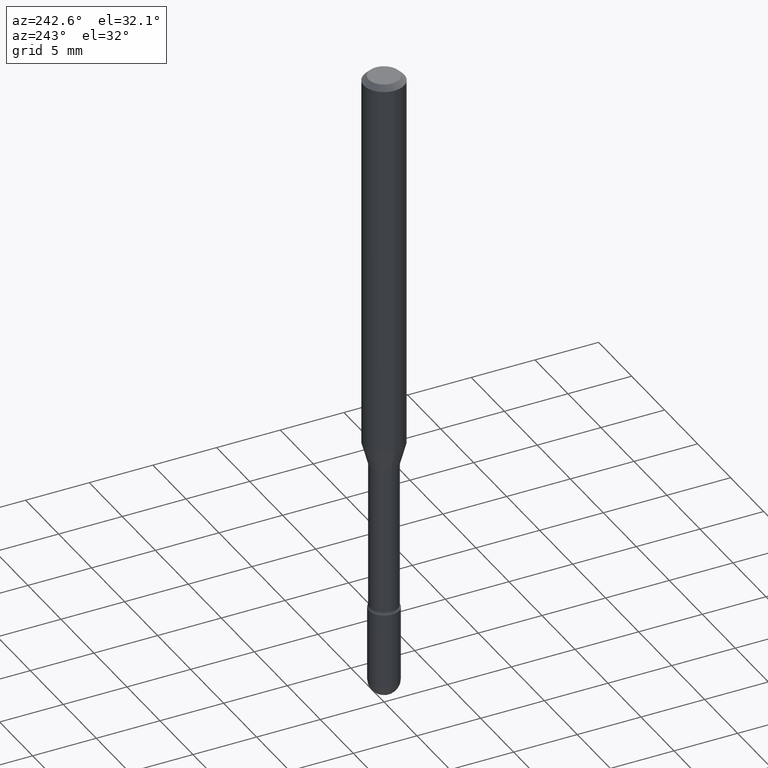
[diagram: clean part render]
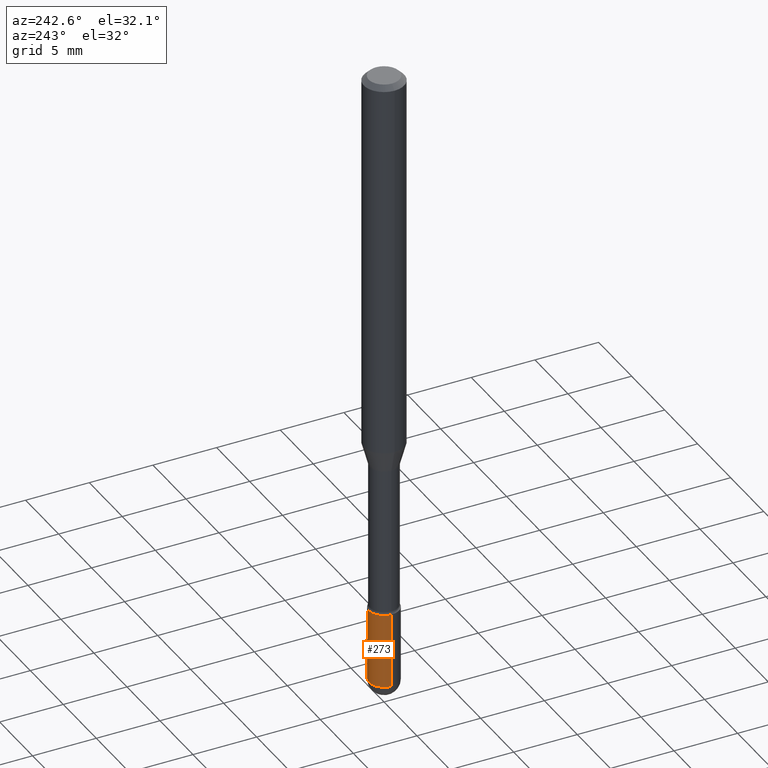
[diagram: same view with one face highlighted and labeled with its STEP entity id]
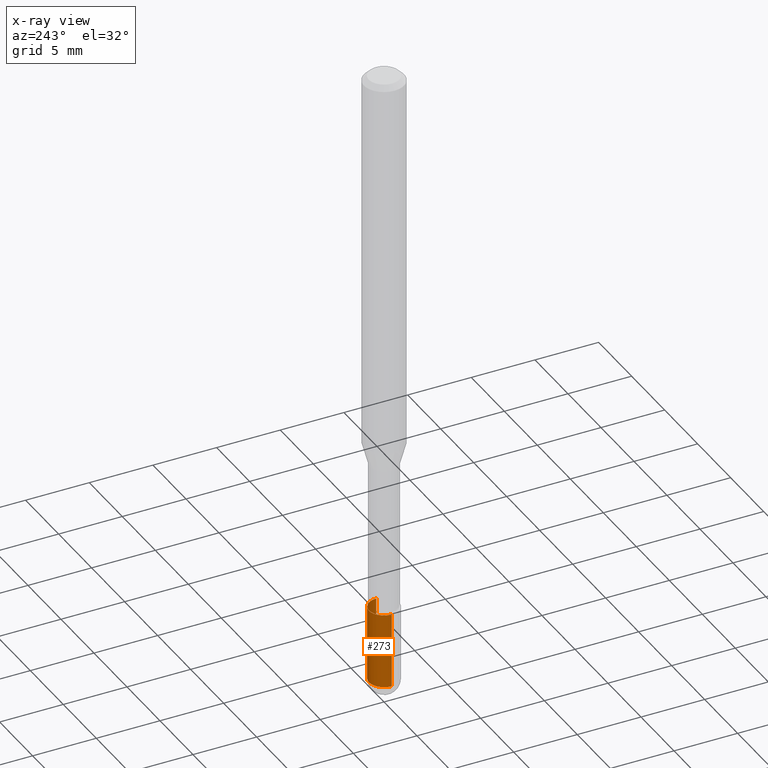
[diagram: x-ray of the same camera — body ghosted, the highlighted face saturated]
A machine part, auxiliary view. The second image highlights one B-rep face of the part: STEP entity #273.
The next image is the same camera in x-ray: the body ghosted, the highlighted face saturated — about 0% of this face is hidden behind the body in this view.
In plain terms, the highlighted cylindrical surface (edge-blend (fillet) strip) has radius 1.1811 mm, axis along (-0, 0, 1).
Its self-contained STEP definition (entity closure, byte-faithful):
#7 = CIRCLE ( 'NONE', #205, 0.04649999999999999967 ) ;
#17 = VECTOR ( 'NONE', #213, 39.37007874015748143 ) ;
#18 = CARTESIAN_POINT ( 'NONE',  ( 4.208651815444620572E-29, -6.008839384149054309E-15, -1.721000000000000085 ) ) ;
#28 = CARTESIAN_POINT ( 'NONE',  ( 4.777223312882664517E-29, -6.820608795430085022E-15, -1.953500000000000014 ) ) ;
#30 = CARTESIAN_POINT ( 'NONE',  ( -0.04649999999999999967, -6.084321717661122786E-15, -1.721000000000000085 ) ) ;
#41 = LINE ( 'NONE', #115, #17 ) ;
#52 = AXIS2_PLACEMENT_3D ( 'NONE', #187, #518, #483 ) ;
#61 = DIRECTION ( 'NONE',  ( -2.445468806185136597E-29, 3.491481338843145583E-15, 1.000000000000000000 ) ) ;
#88 = ORIENTED_EDGE ( 'NONE', *, *, #377, .T. ) ;
#115 = CARTESIAN_POINT ( 'NONE',  ( 0.04649999999999999967, -3.247077645124114474E-16, 2.267422200745110326E-30 ) ) ;
#143 = DIRECTION ( 'NONE',  ( 1.000000000000000000, -6.982962677686260400E-15, 0.000000000000000000 ) ) ;
#156 = EDGE_CURVE ( 'NONE', #261, #419, #340, .T. ) ;
#161 = ORIENTED_EDGE ( 'NONE', *, *, #156, .T. ) ;
#184 = CIRCLE ( 'NONE', #401, 0.04649999999999999967 ) ;
#185 = DIRECTION ( 'NONE',  ( -2.445468806185136597E-29, 3.491481338843145583E-15, 1.000000000000000000 ) ) ;
#187 = CARTESIAN_POINT ( 'NONE',  ( 0.000000000000000000, 0.000000000000000000, 0.000000000000000000 ) ) ;
#194 = CARTESIAN_POINT ( 'NONE',  ( 3.247077645124589763E-16, 0.04649999999999315792, -1.953500000000000458 ) ) ;
#197 = DIRECTION ( 'NONE',  ( -2.445468806185136597E-29, 3.491481338843145583E-15, 1.000000000000000000 ) ) ;
#205 = AXIS2_PLACEMENT_3D ( 'NONE', #529, #61, #143 ) ;
#212 = ORIENTED_EDGE ( 'NONE', *, *, #505, .T. ) ;
#213 = DIRECTION ( 'NONE',  ( -2.445468806185136877E-29, 3.491481338843145188E-15, 1.000000000000000000 ) ) ;
#225 = DIRECTION ( 'NONE',  ( 1.000000000000000000, -6.982962677686260400E-15, 0.000000000000000000 ) ) ;
#237 = DIRECTION ( 'NONE',  ( 1.000000000000000000, -6.982962677686260400E-15, 0.000000000000000000 ) ) ;
#261 = VERTEX_POINT ( 'NONE', #342 ) ;
#266 = CARTESIAN_POINT ( 'NONE',  ( 0.04649999999999999967, -6.333547148661465016E-15, -1.721000000000000085 ) ) ;
#273 = ADVANCED_FACE ( 'NONE', ( #313 ), #413, .T. ) ;
#294 = VECTOR ( 'NONE', #564, 39.37007874015748143 ) ;
#313 = FACE_OUTER_BOUND ( 'NONE', #349, .T. ) ;
#317 = ORIENTED_EDGE ( 'NONE', *, *, #557, .F. ) ;
#340 = LINE ( 'NONE', #559, #294 ) ;
#342 = CARTESIAN_POINT ( 'NONE',  ( -0.04649999999999999967, -6.084321717661123574E-15, -1.953500000000000014 ) ) ;
#344 = ORIENTED_EDGE ( 'NONE', *, *, #482, .F. ) ;
#349 = EDGE_LOOP ( 'NONE', ( #212, #161, #344, #317, #88 ) ) ;
#374 = VERTEX_POINT ( 'NONE', #501 ) ;
#377 = EDGE_CURVE ( 'NONE', #374, #433, #498, .T. ) ;
#401 = AXIS2_PLACEMENT_3D ( 'NONE', #18, #185, #225 ) ;
#413 = CYLINDRICAL_SURFACE ( 'NONE', #52, 0.04649999999999999967 ) ;
#419 = VERTEX_POINT ( 'NONE', #30 ) ;
#426 = AXIS2_PLACEMENT_3D ( 'NONE', #28, #197, #237 ) ;
#433 = VERTEX_POINT ( 'NONE', #194 ) ;
#482 = EDGE_CURVE ( 'NONE', #520, #419, #184, .T. ) ;
#483 = DIRECTION ( 'NONE',  ( 1.000000000000000000, -6.982962677686267499E-15, 4.876176775795936353E-29 ) ) ;
#498 = CIRCLE ( 'NONE', #426, 0.04649999999999999967 ) ;
#501 = CARTESIAN_POINT ( 'NONE',  ( 0.04649999999999999967, -6.739431854301981557E-15, -1.953500000000000014 ) ) ;
#505 = EDGE_CURVE ( 'NONE', #433, #261, #7, .T. ) ;
#518 = DIRECTION ( 'NONE',  ( -2.445468806185136597E-29, 3.491481338843145583E-15, 1.000000000000000000 ) ) ;
#520 = VERTEX_POINT ( 'NONE', #266 ) ;
#529 = CARTESIAN_POINT ( 'NONE',  ( 4.777223312882664517E-29, -6.820608795430085022E-15, -1.953500000000000014 ) ) ;
#557 = EDGE_CURVE ( 'NONE', #374, #520, #41, .T. ) ;
#559 = CARTESIAN_POINT ( 'NONE',  ( -0.04649999999999999967, 3.304023721284465841E-16, -2.287304816968531530E-30 ) ) ;
#564 = DIRECTION ( 'NONE',  ( -2.445468806185136877E-29, 3.491481338843145188E-15, 1.000000000000000000 ) ) ;